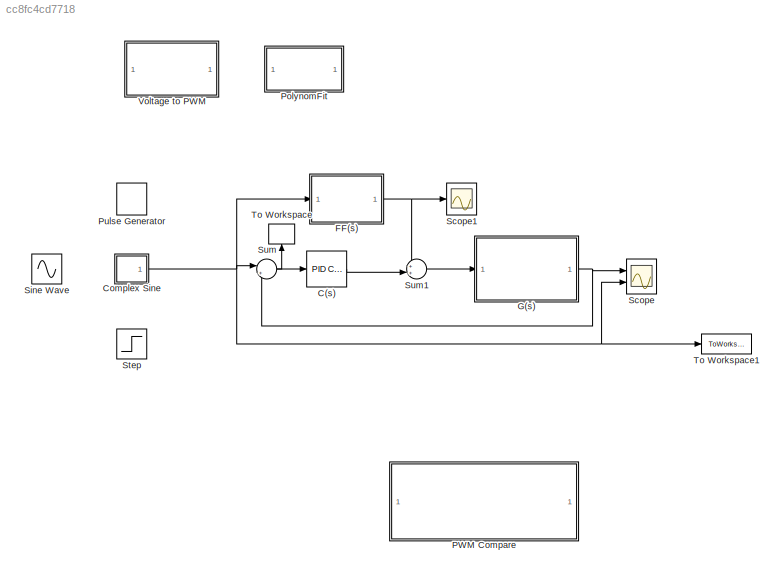
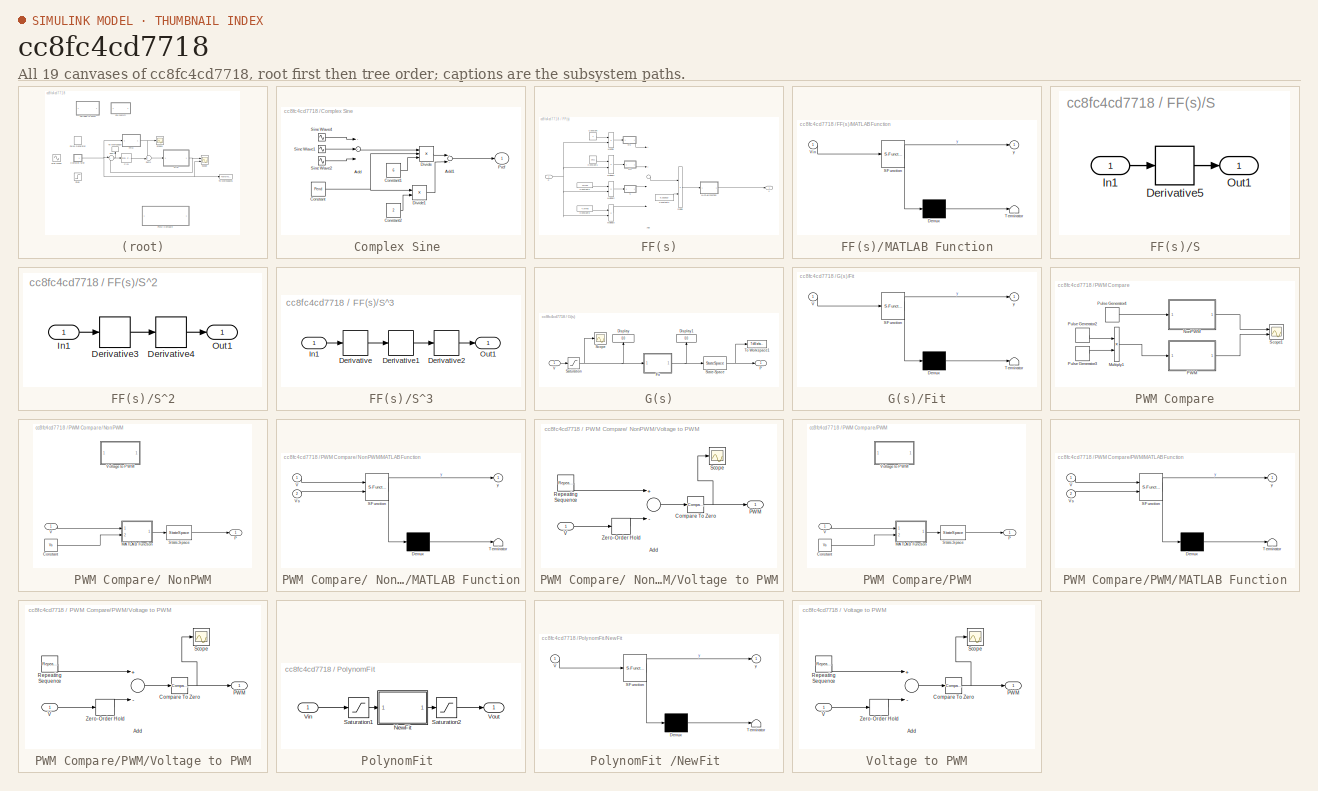
[diagram: thumbnail index - all 19 canvases of the model, root first then tree order]
MODEL slx_cc8fc4cd7718
KIND model
CONFIG AbsTol = auto
CONFIG EnableMultiTasking = off
CONFIG FixedStep = dt
CONFIG MaxStep = auto
CONFIG MinStep = auto
CONFIG RelTol = 1e-3
CONFIG SampleTimeConstraint = Unconstrained
CONFIG Solver = ode4
CONFIG SolverName = ode4
CONFIG StartTime = 0.0
CONFIG StopTime = tend
BLOCK [Reference] C(s)  REF=simulink/Continuous/PID Controller
  Ports = [1, 1]
  SourceBlock = simulink/Continuous/PID Controller
  SourceProductBaseCode = SL
  SourceProductName = Simulink
  SourceType = PID 1dof
BLOCK [SubSystem] Complex Sine 
  Ports = [0, 1]
  RequestExecContextInheritance = off
BLOCK [Sum] Complex Sine /Add
  InputSameDT = off
  Inputs = 3
  OutDataTypeStr = Inherit: Inherit via internal rule
  Ports = [3, 1]
  SaturateOnIntegerOverflow = off
BLOCK [Sum] Complex Sine /Add1
  InputSameDT = off
  OutDataTypeStr = Inherit: Inherit via internal rule
  Ports = [2, 1]
  SaturateOnIntegerOverflow = off
BLOCK [Constant] Complex Sine /Constant
  Value = Pend
BLOCK [Constant] Complex Sine /Constant1
  Value = 6
BLOCK [Constant] Complex Sine /Constant2
  Value = 2
BLOCK [Product] Complex Sine /Divide
  InputSameDT = off
  Inputs = **/
  OutDataTypeStr = Inherit: Inherit via internal rule
  Ports = [3, 1]
  RndMeth = Floor
  SaturateOnIntegerOverflow = off
BLOCK [Product] Complex Sine /Divide1
  InputSameDT = off
  Inputs = */
  OutDataTypeStr = Inherit: Inherit via internal rule
  Ports = [2, 1]
  RndMeth = Floor
  SaturateOnIntegerOverflow = off
BLOCK [Outport] Complex Sine /Pref
  IconDisplay = Port number
BLOCK [Sin] Complex Sine /Sine Wave1
  Frequency = 2*Freq
  Ports = [0, 1]
  SampleTime = 0
BLOCK [Sin] Complex Sine /Sine Wave2
  Frequency = 3*Freq
  Ports = [0, 1]
  SampleTime = 0
BLOCK [Sin] Complex Sine /Sine Wave4
  Frequency = Freq
  Ports = [0, 1]
  SampleTime = 0
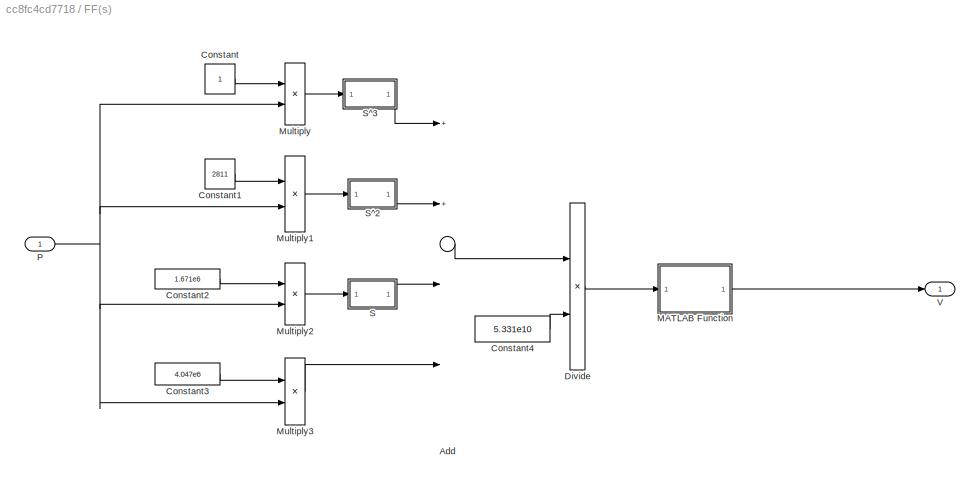
BLOCK [SubSystem] FF(s)
  Ports = [1, 1]
  RequestExecContextInheritance = off
BLOCK [Sum] FF(s)/Add
  InputSameDT = off
  Inputs = 4
  OutDataTypeStr = Inherit: Inherit via internal rule
  Ports = [4, 1]
  SaturateOnIntegerOverflow = off
BLOCK [Constant] FF(s)/Constant
BLOCK [Constant] FF(s)/Constant1
  Value = 2811
BLOCK [Constant] FF(s)/Constant2
  Value = 1.671e6
BLOCK [Constant] FF(s)/Constant3
  Value = 4.047e6
BLOCK [Constant] FF(s)/Constant4
  Value = 5.331e10
BLOCK [Product] FF(s)/Divide
  InputSameDT = off
  Inputs = */
  OutDataTypeStr = Inherit: Inherit via internal rule
  Ports = [2, 1]
  RndMeth = Floor
  SaturateOnIntegerOverflow = off
BLOCK [SubSystem] FF(s)/MATLAB Function
  ErrorFcn = Stateflow.Translate.translate
  PermitHierarchicalResolution = ExplicitOnly
  Ports = [1, 1]
  RequestExecContextInheritance = off
  SFBlockType = MATLAB Function
  TreatAsAtomicUnit = on
BLOCK [Demux] FF(s)/MATLAB Function/ Demux 
  Outputs = 1
  Ports = [1, 1]
BLOCK [S-Function] FF(s)/MATLAB Function/ SFunction 
  EnableBusSupport = on
  FunctionName = sf_sfun
  PortCounts = [1 2]
  Ports = [1, 2]
  SFcnIsStateOwnerBlock = off
  SFunctionDeploymentMode = off
  Tag = Stateflow S-Function Model2 5
BLOCK [Terminator] FF(s)/MATLAB Function/ Terminator 
BLOCK [Inport] FF(s)/MATLAB Function/Vin
  IconDisplay = Port number
BLOCK [Outport] FF(s)/MATLAB Function/y
  IconDisplay = Port number
BLOCK [Product] FF(s)/Multiply
  InputSameDT = off
  OutDataTypeStr = Inherit: Inherit via internal rule
  Ports = [2, 1]
  RndMeth = Floor
  SaturateOnIntegerOverflow = off
BLOCK [Product] FF(s)/Multiply1
  InputSameDT = off
  OutDataTypeStr = Inherit: Inherit via internal rule
  Ports = [2, 1]
  RndMeth = Floor
  SaturateOnIntegerOverflow = off
BLOCK [Product] FF(s)/Multiply2
  InputSameDT = off
  OutDataTypeStr = Inherit: Inherit via internal rule
  Ports = [2, 1]
  RndMeth = Floor
  SaturateOnIntegerOverflow = off
BLOCK [Product] FF(s)/Multiply3
  InputSameDT = off
  OutDataTypeStr = Inherit: Inherit via internal rule
  Ports = [2, 1]
  RndMeth = Floor
  SaturateOnIntegerOverflow = off
BLOCK [Inport] FF(s)/P
  IconDisplay = Port number
BLOCK [SubSystem] FF(s)/S
  Ports = [1, 1]
  RequestExecContextInheritance = off
BLOCK [Derivative] FF(s)/S/Derivative5
BLOCK [Inport] FF(s)/S/In1
  IconDisplay = Port number
BLOCK [Outport] FF(s)/S/Out1
  IconDisplay = Port number
BLOCK [SubSystem] FF(s)/S^2
  Ports = [1, 1]
  RequestExecContextInheritance = off
BLOCK [Derivative] FF(s)/S^2/Derivative3
BLOCK [Derivative] FF(s)/S^2/Derivative4
BLOCK [Inport] FF(s)/S^2/In1
  IconDisplay = Port number
BLOCK [Outport] FF(s)/S^2/Out1
  IconDisplay = Port number
BLOCK [SubSystem] FF(s)/S^3
  Ports = [1, 1]
  RequestExecContextInheritance = off
BLOCK [Derivative] FF(s)/S^3/Derivative
BLOCK [Derivative] FF(s)/S^3/Derivative1
BLOCK [Derivative] FF(s)/S^3/Derivative2
BLOCK [Inport] FF(s)/S^3/In1
  IconDisplay = Port number
BLOCK [Outport] FF(s)/S^3/Out1
  IconDisplay = Port number
BLOCK [Outport] FF(s)/V
  IconDisplay = Port number
BLOCK [SubSystem] G(s)
  Ports = [1, 1]
  RequestExecContextInheritance = off
BLOCK [Display] G(s)/Display
  Decimation = 1
  Ports = [1]
BLOCK [Display] G(s)/Display1
  Decimation = 1
  Ports = [1]
BLOCK [SubSystem] G(s)/Fit
  ErrorFcn = Stateflow.Translate.translate
  PermitHierarchicalResolution = ExplicitOnly
  Ports = [1, 1]
  RequestExecContextInheritance = off
  SFBlockType = MATLAB Function
  TreatAsAtomicUnit = on
BLOCK [Demux] G(s)/Fit/ Demux 
  Outputs = 1
  Ports = [1, 1]
BLOCK [S-Function] G(s)/Fit/ SFunction 
  EnableBusSupport = on
  FunctionName = sf_sfun
  PortCounts = [1 2]
  Ports = [1, 2]
  SFcnIsStateOwnerBlock = off
  SFunctionDeploymentMode = off
  Tag = Stateflow S-Function Model2 2
BLOCK [Terminator] G(s)/Fit/ Terminator 
BLOCK [Inport] G(s)/Fit/V
  IconDisplay = Port number
BLOCK [Outport] G(s)/Fit/y
  IconDisplay = Port number
BLOCK [Outport] G(s)/P
  IconDisplay = Port number
BLOCK [Saturate] G(s)/Saturation
  InputPortMap = u0
  LowerLimit = Vboundlower
  Ports = [1, 1]
  UpperLimit = Vboundupper
BLOCK [Scope] G(s)/Scope
  Floating = off
  NumInputPorts = 1
  Ports = [1]
  ScopeSpecificationString = Simulink.scopes.TimeScopeBlockCfg('CurrentConfiguration', extmgr.ConfigurationSet(extmgr.Configuration('Core','General UI',true),extmgr.Configuration('Core','Source UI',true),extmgr.Configuration('Sources','WiredSimulink',true,'DataLoggingVariableName','ScopeData1'),extmgr.Configuration('Visuals','Time Domain',true,'SerializedDisplays',{struct('MinYLimReal','0.0000009','MaxYLimReal','0.0000011','Y...<+1416ch>
BLOCK [StateSpace] G(s)/State-Space
  A = [-gamma*Rg*T/V0 0 Z; 0 -Res/L -Res*RatedRatio/(L); -(F/Jm)*(Rg*T/V0) Res*RatedRatio/(Jm) -Bm/Jm]
  B = [0; 1/L; 0]
  C = [Rg*T/V0 0 0]
  ContinuousStateAttributes = {'mass',  'current', 'rotationalvelocity'}
  D = 0
  InitialCondition = init
  Ports = [1, 1]
BLOCK [ToWorkspace] G(s)/To Workspace1
  FixptAsFi = on
  MaxDataPoints = inf
  Ports = [1]
  SampleTime = -1
  Save2DSignal = 3-D array (concatenate along third dimension)
  SaveFormat = Timeseries
  VariableName = Req
BLOCK [Inport] G(s)/V
  IconDisplay = Port number
BLOCK [SubSystem] PWM Compare
  Commented = on
  Ports = []
  RequestExecContextInheritance = off
BLOCK [SubSystem] PWM Compare/ NonPWM
  Ports = [1, 1]
  RequestExecContextInheritance = off
BLOCK [Constant] PWM Compare/ NonPWM/Constant
  Value = Vs
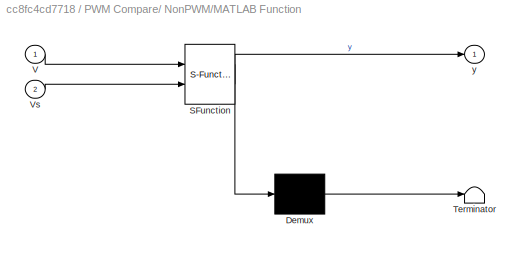
BLOCK [SubSystem] PWM Compare/ NonPWM/MATLAB Function
  ErrorFcn = Stateflow.Translate.translate
  PermitHierarchicalResolution = ExplicitOnly
  Ports = [2, 1]
  RequestExecContextInheritance = off
  SFBlockType = MATLAB Function
  TreatAsAtomicUnit = on
BLOCK [Demux] PWM Compare/ NonPWM/MATLAB Function/ Demux 
  Outputs = 1
  Ports = [1, 1]
BLOCK [S-Function] PWM Compare/ NonPWM/MATLAB Function/ SFunction 
  EnableBusSupport = on
  FunctionName = sf_sfun
  PortCounts = [2 2]
  Ports = [2, 2]
  SFcnIsStateOwnerBlock = off
  SFunctionDeploymentMode = off
  Tag = Stateflow S-Function Model2 1
BLOCK [Terminator] PWM Compare/ NonPWM/MATLAB Function/ Terminator 
BLOCK [Inport] PWM Compare/ NonPWM/MATLAB Function/V
  IconDisplay = Port number
BLOCK [Inport] PWM Compare/ NonPWM/MATLAB Function/Vs
  IconDisplay = Port number
  Port = 2
BLOCK [Outport] PWM Compare/ NonPWM/MATLAB Function/y
  IconDisplay = Port number
BLOCK [Outport] PWM Compare/ NonPWM/P
  IconDisplay = Port number
BLOCK [StateSpace] PWM Compare/ NonPWM/State-Space
  A = [-gamma*Rg*T/V0 0 Z; 0 -Res/L -Res*tau0/(L*Vr); -(F/Jm)*(Rg*T/V0) Res*tau0/(Jm*Vr) -Bm/Jm]
  B = [0; 1/L; 0]
  C = [Rg*T/V0 0 0]
  ContinuousStateAttributes = {'mass',  'current', 'rotationalvelocity'}
  D = 0
  InitialCondition = init
  Ports = [1, 1]
BLOCK [Inport] PWM Compare/ NonPWM/V
  IconDisplay = Port number
BLOCK [SubSystem] PWM Compare/ NonPWM/Voltage to PWM
  Commented = on
  Ports = [1, 1]
  RequestExecContextInheritance = off
BLOCK [Sum] PWM Compare/ NonPWM/Voltage to PWM/Add
  InputSameDT = off
  Inputs = +-
  OutDataTypeStr = Inherit: Inherit via internal rule
  Ports = [2, 1]
  SaturateOnIntegerOverflow = off
BLOCK [Reference] PWM Compare/ NonPWM/Voltage to PWM/Compare To Zero  REF=simulink/Logic and Bit
Operations/Compare
To Zero
  Ports = [1, 1]
  SourceBlock = simulink/Logic and Bit\nOperations/Compare\nTo Zero
  SourceProductBaseCode = SL
  SourceProductName = Simulink
  SourceType = Compare To Zero
BLOCK [Outport] PWM Compare/ NonPWM/Voltage to PWM/PWM
  IconDisplay = Port number
BLOCK [Reference] PWM Compare/ NonPWM/Voltage to PWM/Repeating Sequence  REF=simulink/Sources/Repeating
Sequence
  Ports = [0, 1]
  SourceBlock = simulink/Sources/Repeating\nSequence
  SourceProductBaseCode = SL
  SourceProductName = Simulink
  SourceType = Repeating table
BLOCK [Scope] PWM Compare/ NonPWM/Voltage to PWM/Scope
  Floating = off
  NumInputPorts = 1
  Ports = [1]
  ScopeSpecificationString = Simulink.scopes.TimeScopeBlockCfg('CurrentConfiguration', extmgr.ConfigurationSet(extmgr.Configuration('Core','General UI',true),extmgr.Configuration('Core','Source UI',true),extmgr.Configuration('Sources','WiredSimulink',true,'DataLoggingVariableName','ScopeData1'),extmgr.Configuration('Visuals','Time Domain',true,'SerializedDisplays',{struct('MinYLimReal','-0.125','MaxYLimReal','1.125','YLabelRe...<+1464ch>  <repeated x3 — deduplicated; at blocks: Scope>
BLOCK [Inport] PWM Compare/ NonPWM/Voltage to PWM/V
  IconDisplay = Port number
BLOCK [ZeroOrderHold] PWM Compare/ NonPWM/Voltage to PWM/Zero-Order Hold
  SampleTime = -1
BLOCK [Product] PWM Compare/Multiply1
  InputSameDT = off
  OutDataTypeStr = Inherit: Inherit via internal rule
  Ports = [2, 1]
  RndMeth = Floor
  SaturateOnIntegerOverflow = off
BLOCK [SubSystem] PWM Compare/PWM
  Ports = [1, 1]
  RequestExecContextInheritance = off
BLOCK [Constant] PWM Compare/PWM/Constant
  Value = Vs
BLOCK [SubSystem] PWM Compare/PWM/MATLAB Function
  ErrorFcn = Stateflow.Translate.translate
  PermitHierarchicalResolution = ExplicitOnly
  Ports = [2, 1]
  RequestExecContextInheritance = off
  SFBlockType = MATLAB Function
  TreatAsAtomicUnit = on
BLOCK [Demux] PWM Compare/PWM/MATLAB Function/ Demux 
  Outputs = 1
  Ports = [1, 1]
BLOCK [S-Function] PWM Compare/PWM/MATLAB Function/ SFunction 
  EnableBusSupport = on
  FunctionName = sf_sfun
  PortCounts = [2 2]
  Ports = [2, 2]
  SFcnIsStateOwnerBlock = off
  SFunctionDeploymentMode = off
  Tag = Stateflow S-Function Model2 3
BLOCK [Terminator] PWM Compare/PWM/MATLAB Function/ Terminator 
BLOCK [Inport] PWM Compare/PWM/MATLAB Function/V
  IconDisplay = Port number
BLOCK [Inport] PWM Compare/PWM/MATLAB Function/Vs
  IconDisplay = Port number
  Port = 2
BLOCK [Outport] PWM Compare/PWM/MATLAB Function/y
  IconDisplay = Port number
BLOCK [Outport] PWM Compare/PWM/P
  IconDisplay = Port number
BLOCK [StateSpace] PWM Compare/PWM/State-Space
  A = [-gamma*Rg*T/V0 0 Z; 0 -Res/L -Res*tau0/(L*Vr); -(F/Jm)*(Rg*T/V0) Res*tau0/(Jm*Vr) -Bm/Jm]
  B = [0; 1/L; 0]
  C = [Rg*T/V0 0 0]
  ContinuousStateAttributes = {'mass',  'current', 'rotationalvelocity'}
  D = 0
  InitialCondition = init
  Ports = [1, 1]
BLOCK [Inport] PWM Compare/PWM/V
  IconDisplay = Port number
BLOCK [SubSystem] PWM Compare/PWM/Voltage to PWM
  Commented = on
  Ports = [1, 1]
  RequestExecContextInheritance = off
BLOCK [Sum] PWM Compare/PWM/Voltage to PWM/Add
  InputSameDT = off
  Inputs = +-
  OutDataTypeStr = Inherit: Inherit via internal rule
  Ports = [2, 1]
  SaturateOnIntegerOverflow = off
BLOCK [Reference] PWM Compare/PWM/Voltage to PWM/Compare To Zero  REF=simulink/Logic and Bit
Operations/Compare
To Zero
  Ports = [1, 1]
  SourceBlock = simulink/Logic and Bit\nOperations/Compare\nTo Zero
  SourceProductBaseCode = SL
  SourceProductName = Simulink
  SourceType = Compare To Zero
BLOCK [Outport] PWM Compare/PWM/Voltage to PWM/PWM
  IconDisplay = Port number
BLOCK [Reference] PWM Compare/PWM/Voltage to PWM/Repeating Sequence  REF=simulink/Sources/Repeating
Sequence
  Ports = [0, 1]
  SourceBlock = simulink/Sources/Repeating\nSequence
  SourceProductBaseCode = SL
  SourceProductName = Simulink
  SourceType = Repeating table
BLOCK [Scope] PWM Compare/PWM/Voltage to PWM/Scope
  Floating = off
  NumInputPorts = 1
  Ports = [1]
BLOCK [Inport] PWM Compare/PWM/Voltage to PWM/V
  IconDisplay = Port number
BLOCK [ZeroOrderHold] PWM Compare/PWM/Voltage to PWM/Zero-Order Hold
  SampleTime = -1
BLOCK [DiscretePulseGenerator] PWM Compare/Pulse Generator2
  Amplitude = 5
  Period = 25
  Ports = [0, 1]
  PulseType = Time based
  PulseWidth = 50
BLOCK [DiscretePulseGenerator] PWM Compare/Pulse Generator3
  Period = 0.01
  Ports = [0, 1]
  PulseType = Time based
  PulseWidth = 60
BLOCK [DiscretePulseGenerator] PWM Compare/Pulse Generator4
  Amplitude = 3
  Period = Period
  Ports = [0, 1]
  PulseType = Time based
  PulseWidth = 50
BLOCK [Scope] PWM Compare/Scope1
  Floating = off
  NumInputPorts = 2
  Ports = [2]
  ScopeSpecificationString = Simulink.scopes.TimeScopeBlockCfg('CurrentConfiguration', extmgr.ConfigurationSet(extmgr.Configuration('Core','General UI',true),extmgr.Configuration('Core','Source UI',true),extmgr.Configuration('Sources','WiredSimulink',true,'DataLoggingVariableName','ScopeData1'),extmgr.Configuration('Visuals','Time Domain',true,'SerializedDisplays',{struct('MinYLimReal','10943.36963','MaxYLimReal','10945.25378...<+1479ch>
BLOCK [SubSystem] PolynomFit 
  Commented = on
  Ports = [1, 1]
  RequestExecContextInheritance = off
BLOCK [SubSystem] PolynomFit /NewFit 
  ErrorFcn = Stateflow.Translate.translate
  PermitHierarchicalResolution = ExplicitOnly
  Ports = [1, 1]
  RequestExecContextInheritance = off
  SFBlockType = MATLAB Function
  TreatAsAtomicUnit = on
BLOCK [Demux] PolynomFit /NewFit / Demux 
  Outputs = 1
  Ports = [1, 1]
BLOCK [S-Function] PolynomFit /NewFit / SFunction 
  EnableBusSupport = on
  FunctionName = sf_sfun
  PortCounts = [1 2]
  Ports = [1, 2]
  SFcnIsStateOwnerBlock = off
  SFunctionDeploymentMode = off
  Tag = Stateflow S-Function Model2 4
BLOCK [Terminator] PolynomFit /NewFit / Terminator 
BLOCK [Inport] PolynomFit /NewFit /V
  IconDisplay = Port number
BLOCK [Outport] PolynomFit /NewFit /y
  IconDisplay = Port number
BLOCK [Saturate] PolynomFit /Saturation1
  InputPortMap = u0
  LowerLimit = 1.35
  Ports = [1, 1]
  UpperLimit = 5
BLOCK [Saturate] PolynomFit /Saturation2
  InputPortMap = u0
  LowerLimit = 0
  Ports = [1, 1]
  UpperLimit = inf
BLOCK [Inport] PolynomFit /Vin
  IconDisplay = Port number
BLOCK [Outport] PolynomFit /Vout
  IconDisplay = Port number
BLOCK [DiscretePulseGenerator] Pulse Generator
  Amplitude = Vend
  Period = Period
  PhaseDelay = tstart
  Ports = [0, 1]
  PulseType = Time based
  PulseWidth = 50
BLOCK [Scope] Scope
  Floating = off
  NumInputPorts = 2
  Ports = [2]
  ScopeSpecificationString = Simulink.scopes.TimeScopeBlockCfg('CurrentConfiguration', extmgr.ConfigurationSet(extmgr.Configuration('Core','General UI',true),extmgr.Configuration('Core','Source UI',true),extmgr.Configuration('Sources','WiredSimulink',true),extmgr.Configuration('Visuals','Time Domain',true,'SerializedDisplays',{struct('MinYLimReal','-2592.52043','MaxYLimReal','23332.68385','YLabelReal','','MinYLimMag','  0.000...<+1462ch>
BLOCK [Scope] Scope1
  Floating = off
  NumInputPorts = 1
  Ports = [1]
  ScopeSpecificationString = Simulink.scopes.TimeScopeBlockCfg('CurrentConfiguration', extmgr.ConfigurationSet(extmgr.Configuration('Core','General UI',true),extmgr.Configuration('Core','Source UI',true),extmgr.Configuration('Sources','WiredSimulink',true,'DataLoggingVariableName','ScopeData1'),extmgr.Configuration('Visuals','Time Domain',true,'SerializedDisplays',{struct('MinYLimReal','0.74495','MaxYLimReal','1.43862','YLabe...<+1414ch>
BLOCK [Sin] Sine Wave
  Amplitude = Pend/2
  Bias = Pend/2
  Frequency = Freq
  Ports = [0, 1]
  SampleTime = 0
BLOCK [Step] Step
  After = Pend
  SampleTime = 0
  Time = tstart
BLOCK [Sum] Sum
  IconShape = round
  InputSameDT = off
  Inputs = |+-
  OutDataTypeStr = Inherit: Inherit via internal rule
  Ports = [2, 1]
  SaturateOnIntegerOverflow = off
BLOCK [Sum] Sum1
  IconShape = round
  InputSameDT = off
  Inputs = ++|
  OutDataTypeStr = Inherit: Inherit via internal rule
  Ports = [2, 1]
  SaturateOnIntegerOverflow = off
BLOCK [ToWorkspace] To Workspace
  FixptAsFi = on
  MaxDataPoints = inf
  Ports = [1]
  SampleTime = -1
  Save2DSignal = 3-D array (concatenate along third dimension)
  SaveFormat = Timeseries
  VariableName = Error
BLOCK [ToWorkspace] To Workspace1
  FixptAsFi = on
  MaxDataPoints = inf
  Ports = [1]
  SampleTime = -1
  Save2DSignal = 3-D array (concatenate along third dimension)
  SaveFormat = Timeseries
  VariableName = Sig
BLOCK [SubSystem] Voltage to PWM
  Commented = on
  Ports = [1, 1]
  RequestExecContextInheritance = off
BLOCK [Sum] Voltage to PWM/Add
  InputSameDT = off
  Inputs = +-
  OutDataTypeStr = Inherit: Inherit via internal rule
  Ports = [2, 1]
  SaturateOnIntegerOverflow = off
BLOCK [Reference] Voltage to PWM/Compare To Zero  REF=simulink/Logic and Bit
Operations/Compare
To Zero
  Ports = [1, 1]
  SourceBlock = simulink/Logic and Bit\nOperations/Compare\nTo Zero
  SourceProductBaseCode = SL
  SourceProductName = Simulink
  SourceType = Compare To Zero
BLOCK [Outport] Voltage to PWM/PWM
  IconDisplay = Port number
BLOCK [Reference] Voltage to PWM/Repeating Sequence  REF=simulink/Sources/Repeating
Sequence
  Ports = [0, 1]
  SourceBlock = simulink/Sources/Repeating\nSequence
  SourceProductBaseCode = SL
  SourceProductName = Simulink
  SourceType = Repeating table
BLOCK [Scope] Voltage to PWM/Scope
  Floating = off
  NumInputPorts = 1
  Ports = [1]
BLOCK [Inport] Voltage to PWM/V
  IconDisplay = Port number
BLOCK [ZeroOrderHold] Voltage to PWM/Zero-Order Hold
  SampleTime = -1
LINE C(s):1 -> Sum1:2
LINE Complex Sine /Add1:1 -> Complex Sine /Pref:1
LINE Complex Sine /Add:1 -> Complex Sine /Divide:1
LINE Complex Sine /Constant1:1 -> Complex Sine /Divide:3
LINE Complex Sine /Constant2:1 -> Complex Sine /Divide1:2
NET Complex Sine /Constant:1 -> Complex Sine /Divide1:1, Complex Sine /Divide:2
LINE Complex Sine /Divide1:1 -> Complex Sine /Add1:2
LINE Complex Sine /Divide:1 -> Complex Sine /Add1:1
LINE Complex Sine /Sine Wave1:1 -> Complex Sine /Add:2
LINE Complex Sine /Sine Wave2:1 -> Complex Sine /Add:3
LINE Complex Sine /Sine Wave4:1 -> Complex Sine /Add:1
NET Complex Sine :1 -> FF(s):1, Scope:2, Sum:1, To Workspace1:1
LINE FF(s)/Add:1 -> FF(s)/Divide:1
LINE FF(s)/Constant1:1 -> FF(s)/Multiply1:1
LINE FF(s)/Constant2:1 -> FF(s)/Multiply2:1
LINE FF(s)/Constant3:1 -> FF(s)/Multiply3:1
LINE FF(s)/Constant4:1 -> FF(s)/Divide:2
LINE FF(s)/Constant:1 -> FF(s)/Multiply:1
LINE FF(s)/Divide:1 -> FF(s)/MATLAB Function:1
LINE FF(s)/MATLAB Function:1 -> FF(s)/V:1
LINE FF(s)/Multiply1:1 -> FF(s)/S^2:1
LINE FF(s)/Multiply2:1 -> FF(s)/S:1
LINE FF(s)/Multiply3:1 -> FF(s)/Add:4
LINE FF(s)/Multiply:1 -> FF(s)/S^3:1
NET FF(s)/P:1 -> FF(s)/Multiply1:2, FF(s)/Multiply2:2, FF(s)/Multiply3:2, FF(s)/Multiply:2
LINE FF(s)/S/Derivative5:1 -> FF(s)/S/Out1:1
LINE FF(s)/S/In1:1 -> FF(s)/S/Derivative5:1
LINE FF(s)/S:1 -> FF(s)/Add:3
LINE FF(s)/S^2/Derivative3:1 -> FF(s)/S^2/Derivative4:1
LINE FF(s)/S^2/Derivative4:1 -> FF(s)/S^2/Out1:1
LINE FF(s)/S^2/In1:1 -> FF(s)/S^2/Derivative3:1
LINE FF(s)/S^2:1 -> FF(s)/Add:2
LINE FF(s)/S^3/Derivative1:1 -> FF(s)/S^3/Derivative2:1
LINE FF(s)/S^3/Derivative2:1 -> FF(s)/S^3/Out1:1
LINE FF(s)/S^3/Derivative:1 -> FF(s)/S^3/Derivative1:1
LINE FF(s)/S^3/In1:1 -> FF(s)/S^3/Derivative:1
LINE FF(s)/S^3:1 -> FF(s)/Add:1
NET FF(s):1 -> Scope1:1, Sum1:1
NET G(s)/Fit:1 -> G(s)/Display1:1, G(s)/State-Space:1
NET G(s)/Saturation:1 -> G(s)/Display:1, G(s)/Fit:1, G(s)/Scope:1
NET G(s)/State-Space:1 -> G(s)/P:1, G(s)/To Workspace1:1
LINE G(s)/V:1 -> G(s)/Saturation:1
NET G(s):1 -> Scope:1, Sum:2
LINE PWM Compare/ NonPWM/Constant:1 -> PWM Compare/ NonPWM/MATLAB Function:2
LINE PWM Compare/ NonPWM/MATLAB Function:1 -> PWM Compare/ NonPWM/State-Space:1
LINE PWM Compare/ NonPWM/State-Space:1 -> PWM Compare/ NonPWM/P:1
LINE PWM Compare/ NonPWM/V:1 -> PWM Compare/ NonPWM/MATLAB Function:1
LINE PWM Compare/ NonPWM/Voltage to PWM/Add:1 -> PWM Compare/ NonPWM/Voltage to PWM/Compare To Zero:1
NET PWM Compare/ NonPWM/Voltage to PWM/Compare To Zero:1 -> PWM Compare/ NonPWM/Voltage to PWM/PWM:1, PWM Compare/ NonPWM/Voltage to PWM/Scope:1
LINE PWM Compare/ NonPWM/Voltage to PWM/Repeating Sequence:1 -> PWM Compare/ NonPWM/Voltage to PWM/Add:1
LINE PWM Compare/ NonPWM/Voltage to PWM/V:1 -> PWM Compare/ NonPWM/Voltage to PWM/Zero-Order Hold:1
LINE PWM Compare/ NonPWM/Voltage to PWM/Zero-Order Hold:1 -> PWM Compare/ NonPWM/Voltage to PWM/Add:2
LINE PWM Compare/ NonPWM:1 -> PWM Compare/Scope1:1
LINE PWM Compare/Multiply1:1 -> PWM Compare/PWM:1
LINE PWM Compare/PWM/Constant:1 -> PWM Compare/PWM/MATLAB Function:2
LINE PWM Compare/PWM/MATLAB Function:1 -> PWM Compare/PWM/State-Space:1
LINE PWM Compare/PWM/State-Space:1 -> PWM Compare/PWM/P:1
LINE PWM Compare/PWM/V:1 -> PWM Compare/PWM/MATLAB Function:1
LINE PWM Compare/PWM/Voltage to PWM/Add:1 -> PWM Compare/PWM/Voltage to PWM/Compare To Zero:1
NET PWM Compare/PWM/Voltage to PWM/Compare To Zero:1 -> PWM Compare/PWM/Voltage to PWM/PWM:1, PWM Compare/PWM/Voltage to PWM/Scope:1
LINE PWM Compare/PWM/Voltage to PWM/Repeating Sequence:1 -> PWM Compare/PWM/Voltage to PWM/Add:1
LINE PWM Compare/PWM/Voltage to PWM/V:1 -> PWM Compare/PWM/Voltage to PWM/Zero-Order Hold:1
LINE PWM Compare/PWM/Voltage to PWM/Zero-Order Hold:1 -> PWM Compare/PWM/Voltage to PWM/Add:2
LINE PWM Compare/PWM:1 -> PWM Compare/Scope1:2
LINE PWM Compare/Pulse Generator2:1 -> PWM Compare/Multiply1:1
LINE PWM Compare/Pulse Generator3:1 -> PWM Compare/Multiply1:2
LINE PWM Compare/Pulse Generator4:1 -> PWM Compare/ NonPWM:1
LINE PolynomFit /NewFit :1 -> PolynomFit /Saturation2:1
LINE PolynomFit /Saturation1:1 -> PolynomFit /NewFit :1
LINE PolynomFit /Saturation2:1 -> PolynomFit /Vout:1
LINE PolynomFit /Vin:1 -> PolynomFit /Saturation1:1
LINE Sum1:1 -> G(s):1
NET Sum:1 -> C(s):1, To Workspace:1
LINE Voltage to PWM/Add:1 -> Voltage to PWM/Compare To Zero:1
NET Voltage to PWM/Compare To Zero:1 -> Voltage to PWM/PWM:1, Voltage to PWM/Scope:1
LINE Voltage to PWM/Repeating Sequence:1 -> Voltage to PWM/Add:1
LINE Voltage to PWM/V:1 -> Voltage to PWM/Zero-Order Hold:1
LINE Voltage to PWM/Zero-Order Hold:1 -> Voltage to PWM/Add:2
note: NET lines group one-source signal fan-out (src -> all destinations, sorted); 1:1 wires keep LINE
CHART PWM Compare/ NonPWM/MATLAB Function states=1 transitions=1
  STATE_LABEL 'eML_blk_kernel()'
  STATE_LABEL 'SCRIPT:\nfunction y = Vmin(V, Vs)\nif V >= Vs\nelseif V<Vs\n    V = 0;\nelseif V<-Vs\n    V = -V;\nend\ny = V;\n'
CHART G(s)/Fit states=1 transitions=1
  STATE_LABEL 'eML_blk_kernel()'
  STATE_LABEL 'SCRIPT:\nfunction y = Vmin(V)\nz = 15000;\nif V >= 1.1\nelseif V<1.1\n    V = 0;\nelseif V<-1.1\n    V = -V;\nend\n\nif V >= 1.35\nif V<= 2.2\n        V = z*(V-1.35)^2;\n        if V < 0\n            V = 0;\n        end\nelseif V<= 5\n        x = 38000;\n        V = x*V - x*2.2 + z*(2.2-1.35)^2;\nend\nend\nV = V *(5/80000);\ny = V;\n'
CHART PWM Compare/PWM/MATLAB Function states=1 transitions=1
  STATE_LABEL 'eML_blk_kernel()'
  STATE_LABEL 'SCRIPT:\nfunction y = Vmin(V, Vs)\nif V >= Vs\nelseif V<Vs\n    V = 0;\nelseif V<-Vs\n    V = -V;\nend\ny = V;\n'
CHART PolynomFit /NewFit
 states=1 transitions=1
  STATE_LABEL 'eML_blk_kernel()'
  STATE_LABEL 'SCRIPT:\nfunction y = Vreal(V)    \n    %% Robustness LAR\n       p1 =    0.001971;\n       p2 =     -0.0458;\n       p3 =      0.4358;\n       p4 =      -2.163;\n       p5 =       5.875;\n       p6 =      -8.336;\n       p7 =       5.729;\n       p8 =      -1.615;\n       p9 =      0.1197;\n\n\n  V = p1*V^8 + p2*V^7 + p3*V^6 + p4*V^5 + p5*V^4 + p6*V^3 + p7*V^2 + p8*V + p9;\ny = V;\n'
CHART FF(s)/MATLAB Function states=1 transitions=1
  STATE_LABEL 'eML_blk_kernel()'
  STATE_LABEL 'SCRIPT:\nfunction y = fcn(Vin)  \n    if Vin <= 0\n        Vout = 0;\n    elseif Vin <= 0.6773\n        Vout =  1.032295606*sqrt(Vin)+1.35;\n    else\n    Vout = (1/2.375)*Vin+ 1.9149;\n    end\ny = Vout;\n'
